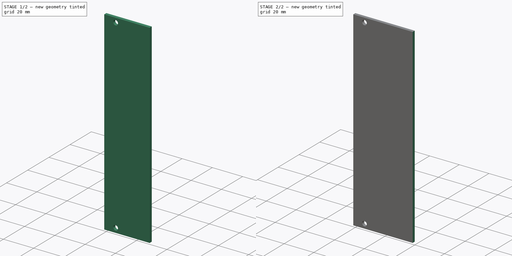
[diagram: build sequence overview — one tinted view per stage of 2, left to right]
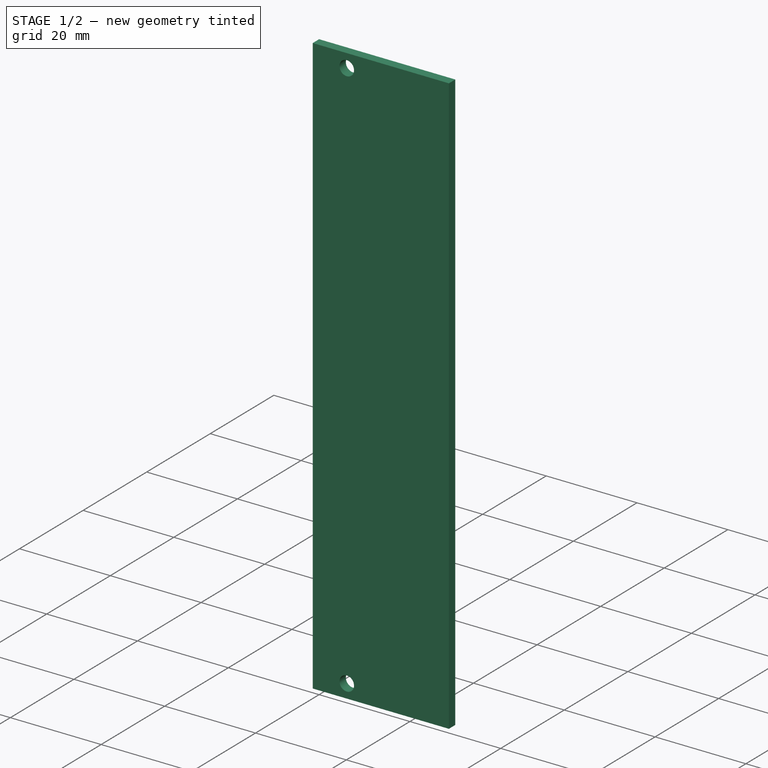
[diagram: stage 1 of 2 — iso view after this stage's code; geometry added in this stage tinted green]
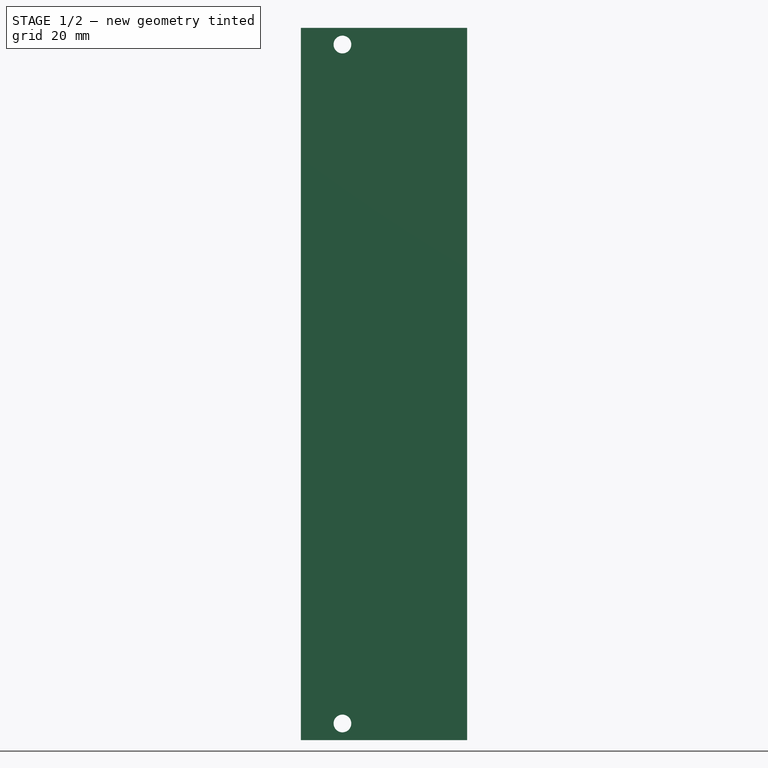
[diagram: stage 1 of 2 — front view after this stage's code; geometry added in this stage tinted green]
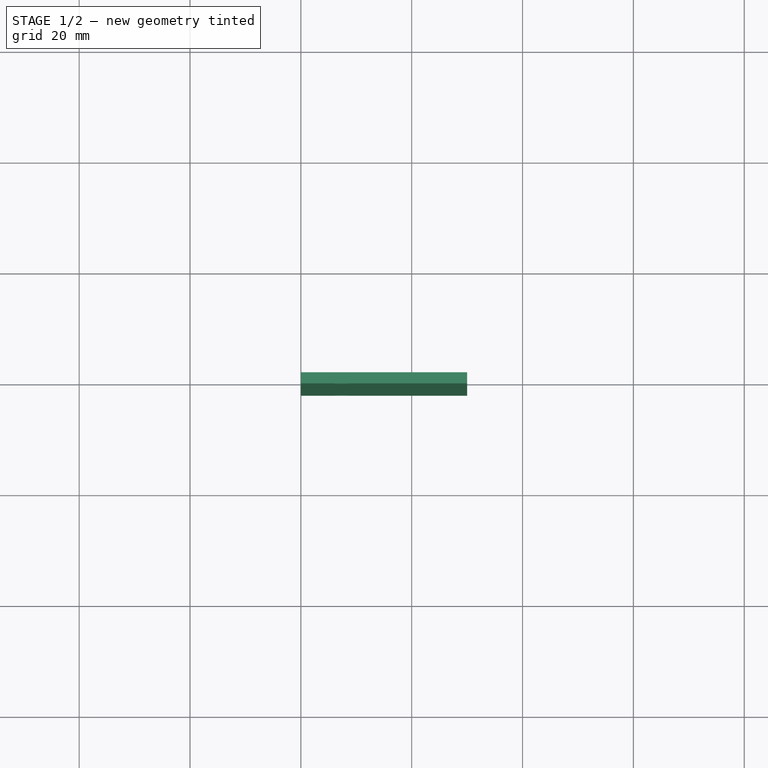
[diagram: stage 1 of 2 — top view after this stage's code; geometry added in this stage tinted green]
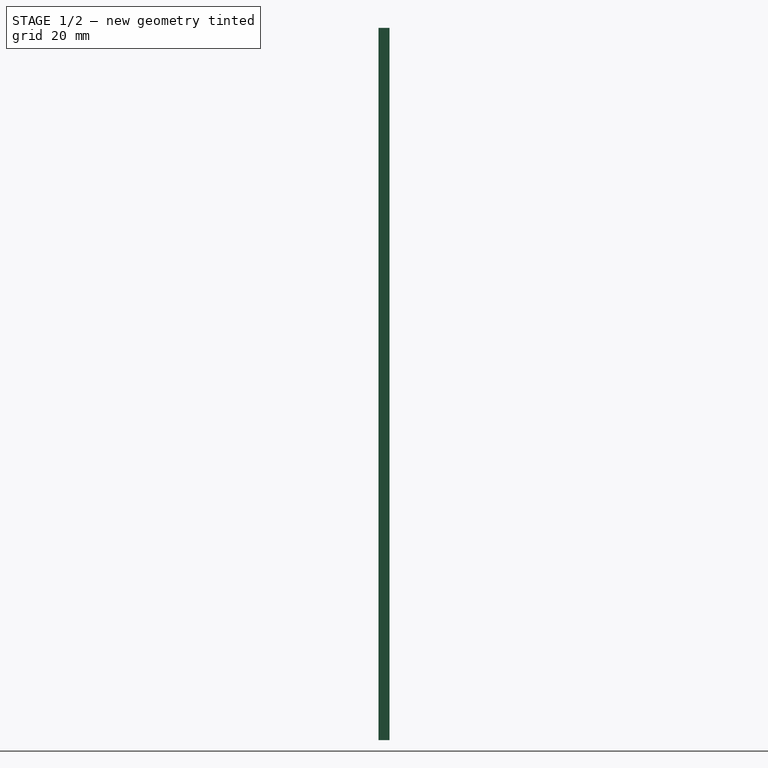
[diagram: stage 1 of 2 — right view after this stage's code; geometry added in this stage tinted green]
FCSTD DOCUMENT  (FreeCAD 0.18R4 (GitTag))
Label: Panel
License: All rights reserved
LicenseURL: http://en.wikipedia.org/wiki/All_rights_reserved
objects: Sketcher::SketchObject×4, PartDesign::Pad×4, PartDesign::Body×4, App::Part×1
note: 16 computed .brp shape members not serialized (recipe doc carries the construction recipe); baked Part::Feature solids carry a one-line shape summary decoded from their .brp

FEATURE [Sketcher::SketchObject] Sketch001
  MapMode = 5
  Placement = pos=(0,0,0) rot=(1,0,0;1.5708rad)
  sketch-geometry (6):
    g0: LineSegment StartX=0 StartY=0 StartZ=0 EndX=30 EndY=0 EndZ=0
    g1: LineSegment StartX=30 StartY=0 StartZ=0 EndX=30 EndY=128.5 EndZ=0
    g2: LineSegment StartX=30 StartY=128.5 StartZ=0 EndX=0 EndY=128.5 EndZ=0
    g3: LineSegment StartX=0 StartY=128.5 StartZ=0 EndX=0 EndY=0 EndZ=0
    g4: Circle CenterX=7.5 CenterY=125.5 CenterZ=0 NormalX=0 NormalY=0 NormalZ=1 AngleXU=0 Radius=1.6
    g5: Circle CenterX=7.5 CenterY=3 CenterZ=0 NormalX=0 NormalY=0 NormalZ=1 AngleXU=0 Radius=1.6
  constraints (17):
    c: Coincident(g0,g1)
    c: Coincident(g1,g2)
    c: Coincident(g2,g3)
    c: Coincident(g3,g0)
    c: Horizontal(g0)
    c: Vertical(g3)
    c: DistanceY(g3,g3) = 128.5  'Height'
    c: Coincident(g0,g-1)  'Origin'
    c: Parallel(g1,g3)
    c: DistanceX(g0,g0) = 30  'Width'
    c: Diameter(g4) = 3.2
    c: DistanceY(g4,g2) = 3
    c: DistanceX(g2,g4) = 7.5
    c: Equal(g4,g5) = 3.2
    c: Vertical(g5,g4)
    c: DistanceY(g0,g5) = 3
    c: Parallel(g0,g2)
FEATURE [PartDesign::Pad] Pad001  label="6U pad"
  Length = 2
  Length2 = 100
  Placement = pos=(0,0,0) rot=(1,0,0;1.5708rad)
  Profile = -> Sketch001
  Type = 0
FEATURE [Sketcher::SketchObject] Sketch004
  MapMode = 5
  Placement = pos=(0,0,0) rot=(-1,0,0;4.71239rad)
  sketch-geometry (6):
    g0: LineSegment StartX=0 StartY=0 StartZ=0 EndX=9.8 EndY=0 EndZ=0
    g1: LineSegment StartX=9.8 StartY=0 StartZ=0 EndX=9.8 EndY=128.5 EndZ=0
    g2: LineSegment StartX=9.8 StartY=128.5 StartZ=0 EndX=0 EndY=128.5 EndZ=0
    g3: LineSegment StartX=0 StartY=128.5 StartZ=0 EndX=0 EndY=0 EndZ=0
    g4: Circle CenterX=7.5 CenterY=125.5 CenterZ=0 NormalX=0 NormalY=0 NormalZ=1 AngleXU=0 Radius=1.6
    g5: Circle CenterX=7.5 CenterY=3 CenterZ=0 NormalX=0 NormalY=0 NormalZ=1 AngleXU=0 Radius=1.6
  constraints (17):
    c: Coincident(g0,g1)
    c: Coincident(g1,g2)
    c: Coincident(g2,g3)
    c: Coincident(g3,g0)
    c: Horizontal(g0)
    c: Vertical(g3)
    c: DistanceY(g3,g3) = 128.5  'Height'
    c: Coincident(g0,g-1)  'Origin'
    c: Parallel(g1,g3)
    c: DistanceX(g0,g0) = 9.8  'Width'
    c: Diameter(g4) = 3.2
    c: DistanceY(g4,g2) = 3
    c: DistanceX(g2,g4) = 7.5
    c: Equal(g4,g5) = 3.2
    c: Vertical(g5,g4)
    c: DistanceY(g0,g5) = 3
    c: Parallel(g0,g2)
FEATURE [PartDesign::Pad] Pad004  label="2U pad"
  Length = 2
  Length2 = 100
  Placement = pos=(0,0,0) rot=(-1,0,0;4.71239rad)
  Profile = -> Sketch004
  Type = 0
FEATURE [PartDesign::Body] Pad003Body  label="8U"
  Group = -> [Sketch003,Pad003]
  Origin = -> Origin001
  Tip = -> Pad003
FEATURE [PartDesign::Body] Pad002Body  label="4U"
  Group = -> [Sketch002,Pad002]
  Origin = -> Origin002
  Tip = -> Pad002
FEATURE [PartDesign::Body] Pad001Body  label="6U"
  Group = -> [Sketch001,Pad001]
  Origin = -> Origin003
  Tip = -> Pad001
FEATURE [PartDesign::Body] Pad004Body  label="2U"
  Group = -> [Sketch004,Pad004]
  Origin = -> Origin004
  Tip = -> Pad004
FEATURE [App::Part] Part
  Group = -> [Pad003Body,Pad002Body,Pad001Body,Pad004Body]
  Origin = -> Origin
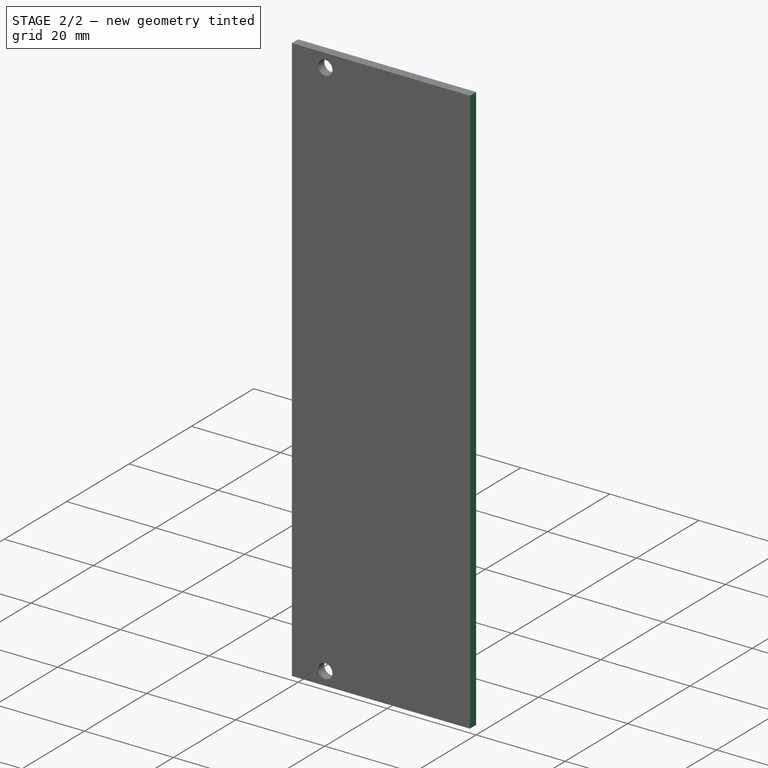
[diagram: stage 2 of 2 — iso view after this stage's code; geometry added in this stage tinted green]
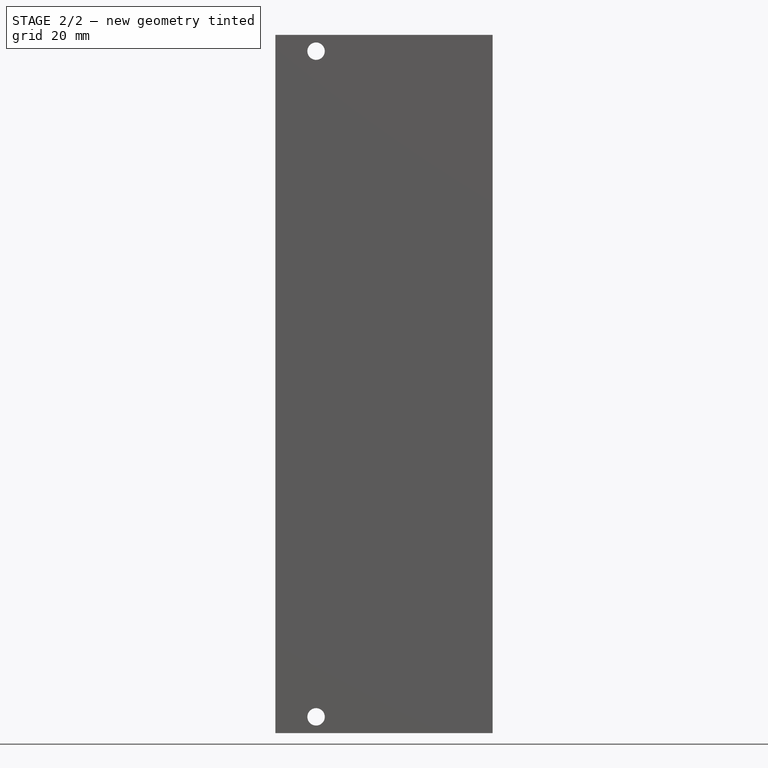
[diagram: stage 2 of 2 — front view after this stage's code; geometry added in this stage tinted green]
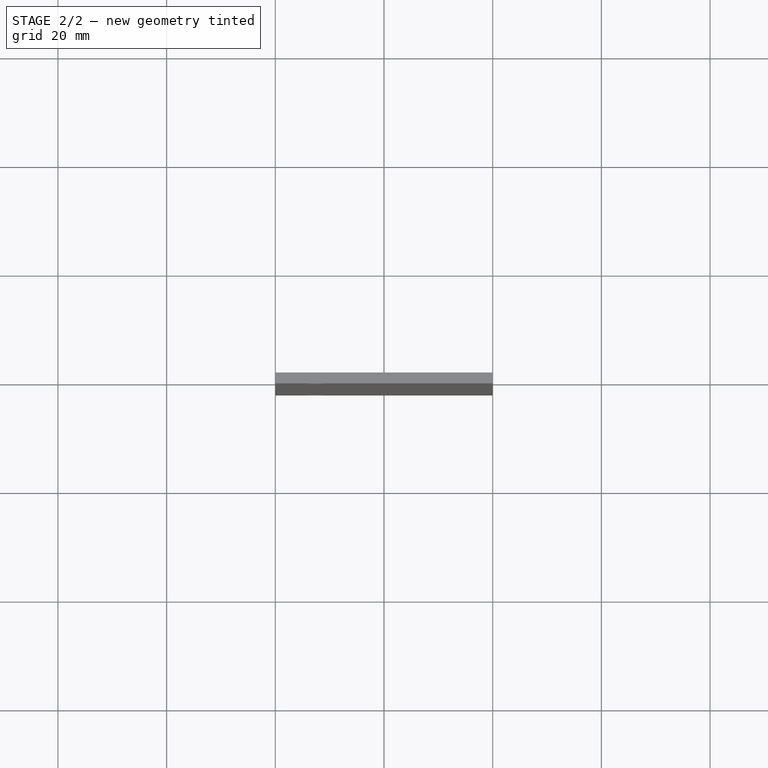
[diagram: stage 2 of 2 — top view after this stage's code; geometry added in this stage tinted green]
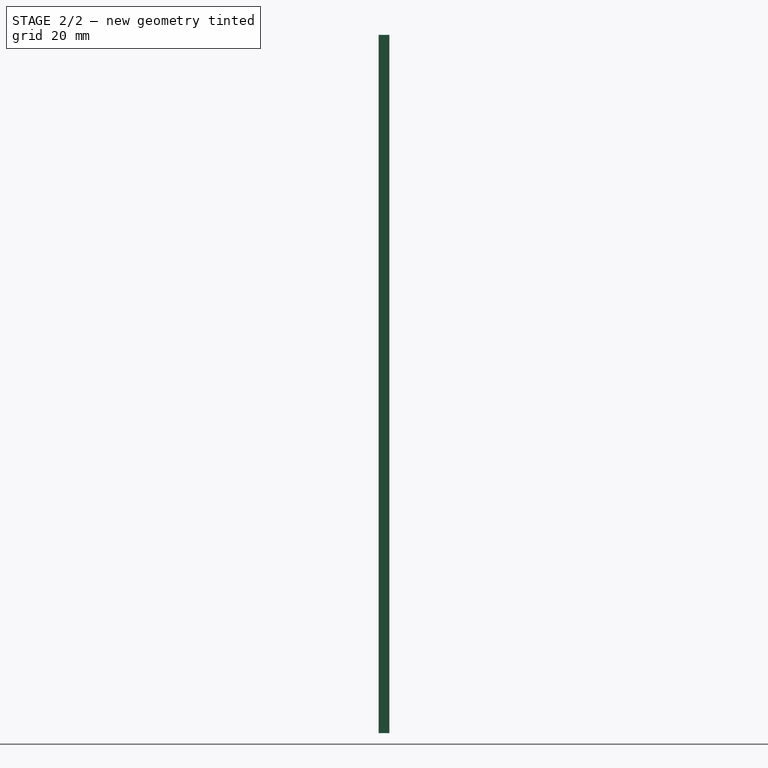
[diagram: stage 2 of 2 — right view after this stage's code; geometry added in this stage tinted green]
FEATURE [Sketcher::SketchObject] Sketch002
  MapMode = 5
  Placement = pos=(0,0,0) rot=(-1,0,0;4.71239rad)
  sketch-geometry (6):
    g0: LineSegment StartX=0 StartY=0 StartZ=0 EndX=20 EndY=0 EndZ=0
    g1: LineSegment StartX=20 StartY=0 StartZ=0 EndX=20 EndY=128.5 EndZ=0
    g2: LineSegment StartX=20 StartY=128.5 StartZ=0 EndX=0 EndY=128.5 EndZ=0
    g3: LineSegment StartX=0 StartY=128.5 StartZ=0 EndX=0 EndY=0 EndZ=0
    g4: Circle CenterX=7.5 CenterY=125.5 CenterZ=0 NormalX=0 NormalY=0 NormalZ=1 AngleXU=0 Radius=1.6
    g5: Circle CenterX=7.5 CenterY=3 CenterZ=0 NormalX=0 NormalY=0 NormalZ=1 AngleXU=0 Radius=1.6
  constraints (17):
    c: Coincident(g0,g1)
    c: Coincident(g1,g2)
    c: Coincident(g2,g3)
    c: Coincident(g3,g0)
    c: Horizontal(g0)
    c: Vertical(g3)
    c: DistanceY(g3,g3) = 128.5  'Height'
    c: Coincident(g0,g-1)  'Origin'
    c: Parallel(g1,g3)
    c: DistanceX(g0,g0) = 20  'Width'
    c: Diameter(g4) = 3.2
    c: DistanceY(g4,g2) = 3
    c: DistanceX(g2,g4) = 7.5
    c: Equal(g4,g5) = 3.2
    c: Vertical(g5,g4)
    c: DistanceY(g0,g5) = 3
    c: Parallel(g0,g2)
FEATURE [PartDesign::Pad] Pad002  label="4U pad"
  Length = 2
  Length2 = 100
  Placement = pos=(0,0,0) rot=(-1,0,0;4.71239rad)
  Profile = -> Sketch002
  Type = 0
FEATURE [Sketcher::SketchObject] Sketch003
  MapMode = 5
  Placement = pos=(0,0,0) rot=(-1,0,0;4.71239rad)
  sketch-geometry (6):
    g0: LineSegment StartX=0 StartY=0 StartZ=0 EndX=40 EndY=0 EndZ=0
    g1: LineSegment StartX=40 StartY=0 StartZ=0 EndX=40 EndY=128.5 EndZ=0
    g2: LineSegment StartX=40 StartY=128.5 StartZ=0 EndX=0 EndY=128.5 EndZ=0
    g3: LineSegment StartX=0 StartY=128.5 StartZ=0 EndX=0 EndY=0 EndZ=0
    g4: Circle CenterX=7.5 CenterY=125.5 CenterZ=0 NormalX=0 NormalY=0 NormalZ=1 AngleXU=0 Radius=1.6
    g5: Circle CenterX=7.5 CenterY=3 CenterZ=0 NormalX=0 NormalY=0 NormalZ=1 AngleXU=0 Radius=1.6
  constraints (17):
    c: Coincident(g0,g1)
    c: Coincident(g1,g2)
    c: Coincident(g2,g3)
    c: Coincident(g3,g0)
    c: Horizontal(g0)
    c: Vertical(g3)
    c: DistanceY(g3,g3) = 128.5  'Height'
    c: Coincident(g0,g-1)  'Origin'
    c: Parallel(g1,g3)
    c: DistanceX(g0,g0) = 40  'Width'
    c: Diameter(g4) = 3.2
    c: DistanceY(g4,g2) = 3
    c: DistanceX(g2,g4) = 7.5
    c: Equal(g4,g5) = 3.2
    c: Vertical(g5,g4)
    c: DistanceY(g0,g5) = 3
    c: Parallel(g0,g2)
FEATURE [PartDesign::Pad] Pad003  label="8U pad"
  Length = 2
  Length2 = 100
  Placement = pos=(0,0,0) rot=(-1,0,0;4.71239rad)
  Profile = -> Sketch003
  Type = 0
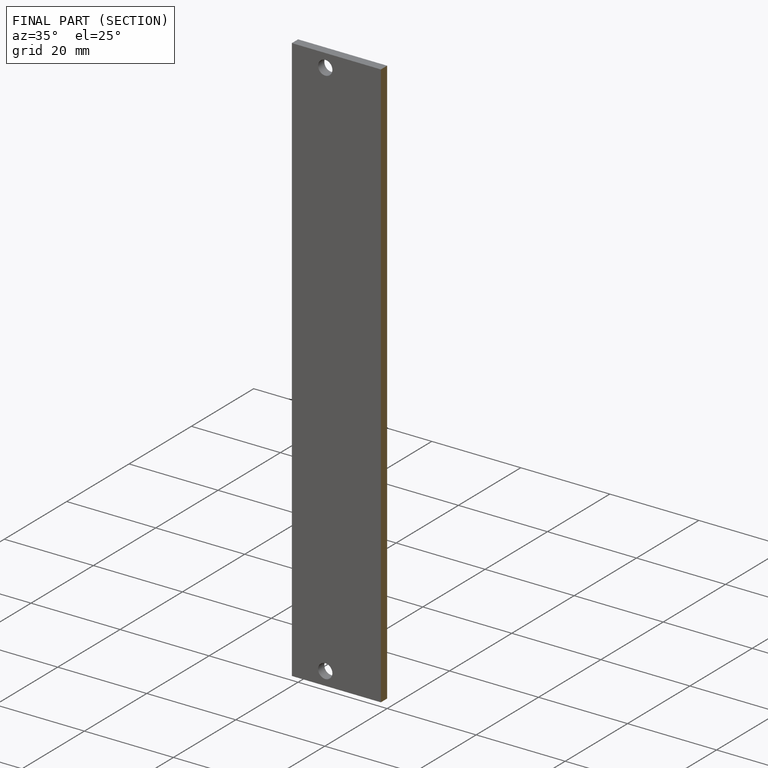
[diagram: finished part — half-section view (interior)]
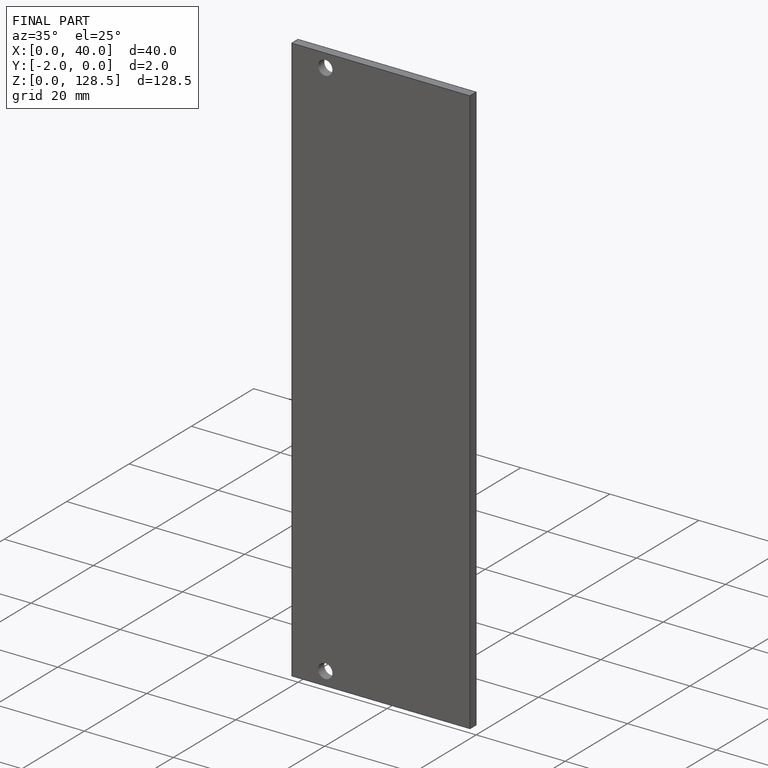
[diagram: finished part — iso view with bounding-box wireframe]
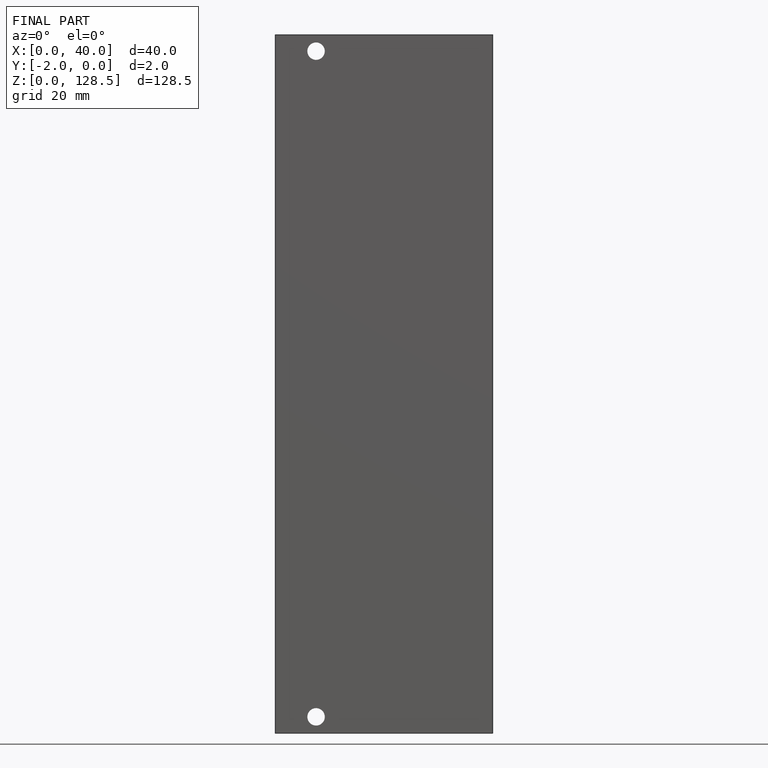
[diagram: finished part — front view with bounding-box wireframe]
